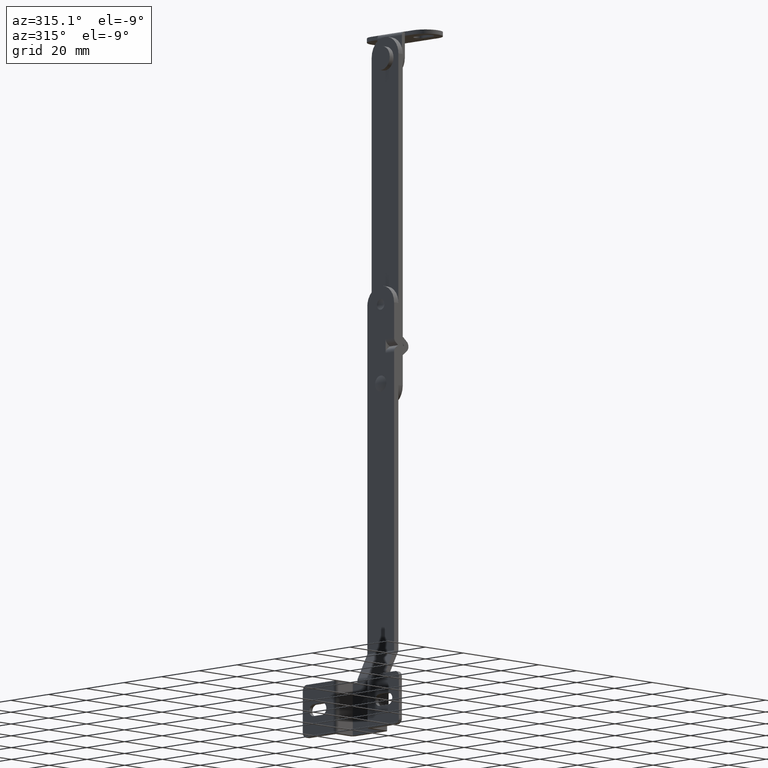
[diagram: clean part render]
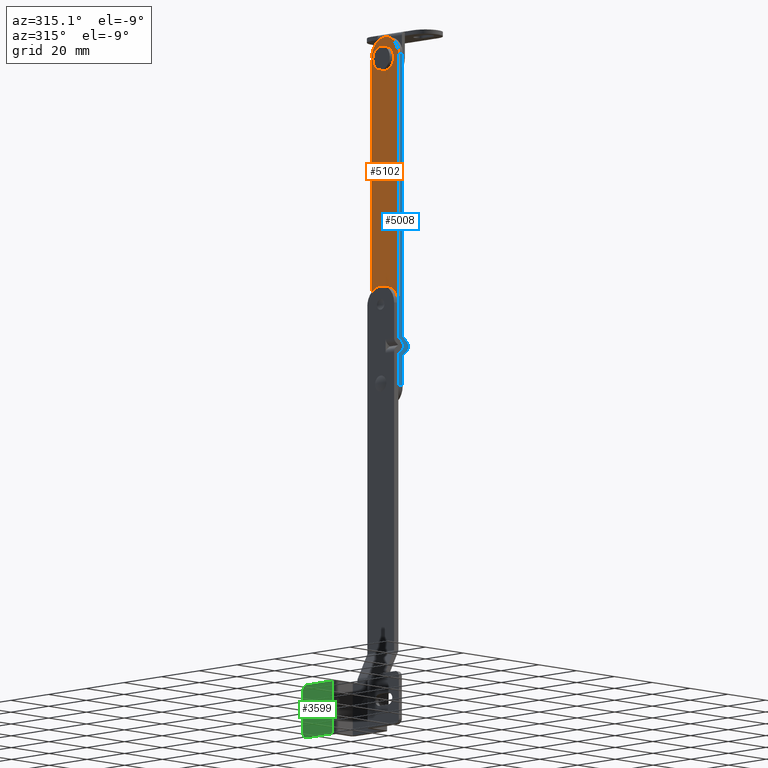
[diagram: same view with three faces highlighted in distinct colors, each labeled with its STEP entity id]
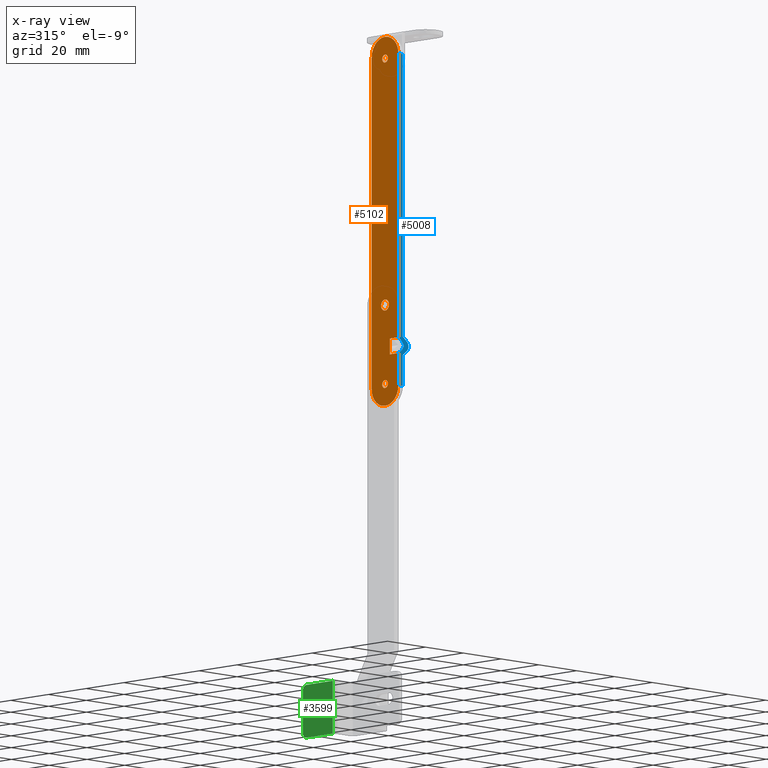
[diagram: x-ray of the same camera — body ghosted, the three highlighted faces saturated]
A machine part, auxiliary view with three faces highlighted in distinct colors.
The next image is the same camera in x-ray (body ghosted, the three faces saturated) — at least one of them is partly hidden behind the body in this view.
Their STEP definitions:

[orange] entity #5102 — the highlighted face is a freeform B-spline surface patch.
#3891=CARTESIAN_POINT('',(18.000005999999850,-1.504966212041846,31.464605460073400));
#3892=VERTEX_POINT('',#3891);
#3898=CARTESIAN_POINT('',(18.000005999999850,2.353318E-011,32.099999999999987));
#3899=VERTEX_POINT('',#3898);
#3900=CARTESIAN_POINT('',(18.000005999999850,2.353318E-011,32.099999999999987));
#3901=CARTESIAN_POINT('',(18.000005999999839,-0.297172532813742,32.100413468206327));
#3902=CARTESIAN_POINT('',(18.000005999999861,-0.856086520250351,31.979152703507591));
#3903=CARTESIAN_POINT('',(18.000005999999871,-1.322246616970956,31.652674539093280));
#3904=CARTESIAN_POINT('',(18.000005999999850,-1.504966212041846,31.464605460073400));
#3905=B_SPLINE_CURVE_WITH_KNOTS('',3,(#3900,#3901,#3902,#3903,#3904),.UNSPECIFIED.,.F.,.U.,(4,1,4),(0.000000161100297,0.891350011063941,1.677919263328558),.UNSPECIFIED.);
#3906=EDGE_CURVE('',#3899,#3892,#3905,.T.);
#3908=CARTESIAN_POINT('',(18.000005999999850,2.100000000011224,30.000007190142139));
#3909=VERTEX_POINT('',#3908);
#3910=CARTESIAN_POINT('',(18.000005999999850,2.100000000011224,30.000007190142139));
#3911=CARTESIAN_POINT('',(18.000005999999811,2.100401341967309,30.292166228100371));
#3912=CARTESIAN_POINT('',(18.000005999999939,2.012530415936131,30.704159471263338));
#3913=CARTESIAN_POINT('',(18.000005999999772,1.713138740352597,31.248002677381219));
#3914=CARTESIAN_POINT('',(18.000005999999960,1.316744935064823,31.685733563740659));
#3915=CARTESIAN_POINT('',(18.000005999999839,0.704396946099515,32.022629308128671));
#3916=CARTESIAN_POINT('',(18.000005999999878,0.223348172160021,32.100091444917219));
#3917=CARTESIAN_POINT('',(18.000005999999850,2.353318E-011,32.099999999999987));
#3918=B_SPLINE_CURVE_WITH_KNOTS('',3,(#3910,#3911,#3912,#3913,#3914,#3915,#3916,#3917),.UNSPECIFIED.,.F.,.U.,(4,1,1,1,1,4),(0.000000669547682,0.876232426485192,1.237077105182174,1.855504484027237,2.628699516542808,3.298751010646302),.UNSPECIFIED.);
#3919=EDGE_CURVE('',#3909,#3899,#3918,.T.);
#3921=CARTESIAN_POINT('',(18.000005999999850,2.353318E-011,27.899999999999999));
#3922=VERTEX_POINT('',#3921);
#3923=CARTESIAN_POINT('',(18.000005999999850,2.353318E-011,27.899999999999999));
#3924=CARTESIAN_POINT('',(18.000005999999878,0.360980440037213,27.899208218690902));
#3925=CARTESIAN_POINT('',(18.000005999999861,0.927011595196687,28.049731312821091));
#3926=CARTESIAN_POINT('',(18.000005999999811,1.474529900883017,28.477497435432269));
#3927=CARTESIAN_POINT('',(18.000005999999900,1.797811981718269,28.881350219763771));
#3928=CARTESIAN_POINT('',(18.000005999999910,2.033589203726059,29.364375680627610));
#3929=CARTESIAN_POINT('',(18.000005999999971,2.100124947958748,29.776646203857279));
#3930=CARTESIAN_POINT('',(18.000005999999850,2.100000000011224,30.000007190142139));
#3931=B_SPLINE_CURVE_WITH_KNOTS('',3,(#3923,#3924,#3925,#3926,#3927,#3928,#3929,#3930),.UNSPECIFIED.,.F.,.U.,(4,1,1,1,1,4),(0.000000659755424,1.082423134495415,1.700823224128252,2.061679648452581,2.628705970534092,3.298759115814546),.UNSPECIFIED.);
#3932=EDGE_CURVE('',#3922,#3909,#3931,.T.);
#3934=CARTESIAN_POINT('',(18.000005999999850,-1.548283788686297,28.581259420988779));
#3935=VERTEX_POINT('',#3934);
#3936=CARTESIAN_POINT('',(18.000005999999850,-1.548283788686297,28.581259420988779));
#3937=CARTESIAN_POINT('',(18.000005999999821,-1.303817160621517,28.312990594797551));
#3938=CARTESIAN_POINT('',(18.000005999999900,-0.797959896839803,27.990931273943819));
#3939=CARTESIAN_POINT('',(18.000005999999821,-0.217623969289623,27.899913682911869));
#3940=CARTESIAN_POINT('',(18.000005999999850,2.353318E-011,27.899999999999999));
#3941=B_SPLINE_CURVE_WITH_KNOTS('',3,(#3936,#3937,#3938,#3939,#3940),.UNSPECIFIED.,.F.,.U.,(4,1,4),(0.000000193664474,1.088114173913510,1.741015436768698),.UNSPECIFIED.);
#3942=EDGE_CURVE('',#3935,#3922,#3941,.T.);
#4021=CARTESIAN_POINT('',(18.000005999999850,-2.099999999964158,29.999992809857861));
#4022=VERTEX_POINT('',#4021);
#4023=CARTESIAN_POINT('',(18.000005999999850,-2.099999999964158,29.999992809857861));
#4024=CARTESIAN_POINT('',(18.000005999999921,-2.100401119125408,29.707843365561729));
#4025=CARTESIAN_POINT('',(18.000005999999729,-1.989744865538777,29.189020635594790));
#4026=CARTESIAN_POINT('',(18.000005999999921,-1.701865079064785,28.748654214679600));
#4027=CARTESIAN_POINT('',(18.000005999999850,-1.548283788686297,28.581259420988779));
#4028=B_SPLINE_CURVE_WITH_KNOTS('',3,(#4023,#4024,#4025,#4026,#4027),.UNSPECIFIED.,.F.,.U.,(4,1,4),(0.000000134614313,0.876283968948805,1.557839109256584),.UNSPECIFIED.);
#4029=EDGE_CURVE('',#4022,#3935,#4028,.T.);
#4031=CARTESIAN_POINT('',(18.000005999999850,-1.504966212041846,31.464605460073400));
#4032=CARTESIAN_POINT('',(18.000005999999839,-1.646309316688730,31.319450948581029));
#4033=CARTESIAN_POINT('',(18.000005999999871,-1.966668331505959,30.877320853909239));
#4034=CARTESIAN_POINT('',(18.000005999999839,-2.100746622087415,30.337826910873151));
#4035=CARTESIAN_POINT('',(18.000005999999850,-2.099999999964158,29.999992809857861));
#4036=B_SPLINE_CURVE_WITH_KNOTS('',3,(#4031,#4032,#4033,#4034,#4035),.UNSPECIFIED.,.F.,.U.,(4,1,4),(0.000000135716898,0.607832228863744,1.620841652716792),.UNSPECIFIED.);
#4037=EDGE_CURVE('',#3892,#4022,#4036,.T.);
#4114=CARTESIAN_POINT('',(18.000005999999850,1.088061622532548,124.532531757016200));
#4115=VERTEX_POINT('',#4114);
#4121=CARTESIAN_POINT('',(18.000005999999850,1.500000000000196,123.499999898093290));
#4122=VERTEX_POINT('',#4121);
#4123=CARTESIAN_POINT('',(18.000005999999850,1.500000000000196,123.499999898093290));
#4124=CARTESIAN_POINT('',(18.000005999999861,1.500094373910349,123.666090641040100));
#4125=CARTESIAN_POINT('',(18.000005999999821,1.436299482553834,124.045644888099600));
#4126=CARTESIAN_POINT('',(18.000005999999871,1.235304094366208,124.377817498110800));
#4127=CARTESIAN_POINT('',(18.000005999999850,1.088061622532548,124.532531757016200));
#4128=B_SPLINE_CURVE_WITH_KNOTS('',3,(#4123,#4124,#4125,#4126,#4127),.UNSPECIFIED.,.F.,.U.,(4,1,4),(0.000000215309600,0.498302147729972,1.138934045765472),.UNSPECIFIED.);
#4129=EDGE_CURVE('',#4122,#4115,#4128,.T.);
#4131=CARTESIAN_POINT('',(18.000005999999850,1.989520E-013,122.0));
#4132=VERTEX_POINT('',#4131);
#4133=CARTESIAN_POINT('',(18.000005999999850,1.989520E-013,122.0));
#4134=CARTESIAN_POINT('',(18.000005999999871,0.196374532189705,121.999806401937600));
#4135=CARTESIAN_POINT('',(18.000005999999850,0.588955400089572,122.078181439890000));
#4136=CARTESIAN_POINT('',(18.000005999999850,1.046616667949967,122.383904967156790));
#4137=CARTESIAN_POINT('',(18.000005999999861,1.401348529731233,122.862338073790300));
#4138=CARTESIAN_POINT('',(18.000005999999850,1.500501754522636,123.254428608522600));
#4139=CARTESIAN_POINT('',(18.000005999999850,1.500000000000196,123.499999898093290));
#4140=B_SPLINE_CURVE_WITH_KNOTS('',3,(#4133,#4134,#4135,#4136,#4137,#4138,#4139),.UNSPECIFIED.,.F.,.U.,(4,1,1,1,4),(0.000000459809881,0.589113369120328,1.178215900985511,1.620021289901941,2.356430767539218),.UNSPECIFIED.);
#4141=EDGE_CURVE('',#4132,#4122,#4140,.T.);
#4143=CARTESIAN_POINT('',(18.000005999999850,-1.499999999999798,123.500000101906710));
#4144=VERTEX_POINT('',#4143);
#4145=CARTESIAN_POINT('',(18.000005999999850,-1.499999999999798,123.500000101906710));
#4146=CARTESIAN_POINT('',(18.000005999999861,-1.500197131953345,123.303619964216690));
#4147=CARTESIAN_POINT('',(18.000005999999861,-1.421811866643334,122.911054073509310));
#4148=CARTESIAN_POINT('',(18.000005999999861,-1.116108213253855,122.453366895425300));
#4149=CARTESIAN_POINT('',(18.000005999999878,-0.637644643968191,122.098672159158200));
#4150=CARTESIAN_POINT('',(18.000005999999821,-0.245579947262801,121.999488274877710));
#4151=CARTESIAN_POINT('',(18.000005999999850,1.989520E-013,122.0));
#4152=B_SPLINE_CURVE_WITH_KNOTS('',3,(#4145,#4146,#4147,#4148,#4149,#4150,#4151),.UNSPECIFIED.,.F.,.U.,(4,1,1,1,4),(0.000000459267700,0.589113397398850,1.178215958646211,1.620021368977781,2.356430882423099),.UNSPECIFIED.);
#4153=EDGE_CURVE('',#4144,#4132,#4152,.T.);
#4155=CARTESIAN_POINT('',(18.000005999999850,-0.968612601166056,124.645333883298090));
#4156=VERTEX_POINT('',#4155);
#4157=CARTESIAN_POINT('',(18.000005999999850,-0.968612601166056,124.645333883298090));
#4158=CARTESIAN_POINT('',(18.000005999999861,-1.113856927582145,124.522729050563900));
#4159=CARTESIAN_POINT('',(18.000005999999900,-1.391287532771702,124.178256000644400));
#4160=CARTESIAN_POINT('',(18.000005999999829,-1.500528915928544,123.744470464866590));
#4161=CARTESIAN_POINT('',(18.000005999999850,-1.499999999999798,123.500000101906710));
#4162=B_SPLINE_CURVE_WITH_KNOTS('',3,(#4157,#4158,#4159,#4160,#4161),.UNSPECIFIED.,.F.,.U.,(4,1,4),(0.000000213399076,0.570222299864618,1.303362865730294),.UNSPECIFIED.);
#4163=EDGE_CURVE('',#4156,#4144,#4162,.T.);
#4198=CARTESIAN_POINT('',(18.000005999999850,1.989520E-013,125.0));
#4199=VERTEX_POINT('',#4198);
#4200=CARTESIAN_POINT('',(18.000005999999850,1.989520E-013,125.0));
#4201=CARTESIAN_POINT('',(18.000005999999850,-0.153573943671783,125.000065105575300));
#4202=CARTESIAN_POINT('',(18.000005999999889,-0.504523594658172,124.945632617794800));
#4203=CARTESIAN_POINT('',(18.000005999999829,-0.817982338751742,124.773012932810000));
#4204=CARTESIAN_POINT('',(18.000005999999850,-0.968612601166056,124.645333883298090));
#4205=B_SPLINE_CURVE_WITH_KNOTS('',3,(#4200,#4201,#4202,#4203,#4204),.UNSPECIFIED.,.F.,.U.,(4,1,4),(0.000000145798232,0.460735339230447,1.053075834784423),.UNSPECIFIED.);
#4206=EDGE_CURVE('',#4199,#4156,#4205,.T.);
#4208=CARTESIAN_POINT('',(18.000005999999850,1.088061622532548,124.532531757016200));
#4209=CARTESIAN_POINT('',(18.000005999999878,0.965957782783881,124.661418673217600));
#4210=CARTESIAN_POINT('',(18.000005999999800,0.633672929435514,124.905403570032800));
#4211=CARTESIAN_POINT('',(18.000005999999878,0.228349634128027,125.000411552657100));
#4212=CARTESIAN_POINT('',(18.000005999999850,1.989520E-013,125.0));
#4213=B_SPLINE_CURVE_WITH_KNOTS('',3,(#4208,#4209,#4210,#4211,#4212),.UNSPECIFIED.,.F.,.U.,(4,1,4),(0.000000151179073,0.532655956815469,1.217497629202838),.UNSPECIFIED.);
#4214=EDGE_CURVE('',#4115,#4199,#4213,.T.);
#4300=CARTESIAN_POINT('',(18.000005999999850,1.088061622532351,1.032531757016201));
#4301=VERTEX_POINT('',#4300);
#4307=CARTESIAN_POINT('',(18.000005999999850,1.499999999999997,-0.000000101906711));
#4308=VERTEX_POINT('',#4307);
#4309=CARTESIAN_POINT('',(18.000005999999850,1.499999999999997,-0.000000101906711));
#4310=CARTESIAN_POINT('',(18.000005999999871,1.500307129996414,0.213583071912541));
#4311=CARTESIAN_POINT('',(18.000005999999839,1.417453419207446,0.592880995900390));
#4312=CARTESIAN_POINT('',(18.000005999999871,1.202459026307127,0.912120892701639));
#4313=CARTESIAN_POINT('',(18.000005999999850,1.088061622532351,1.032531757016201));
#4314=B_SPLINE_CURVE_WITH_KNOTS('',3,(#4309,#4310,#4311,#4312,#4313),.UNSPECIFIED.,.F.,.U.,(4,1,4),(0.000000215310021,0.640632113347554,1.138934045765467),.UNSPECIFIED.);
#4315=EDGE_CURVE('',#4308,#4301,#4314,.T.);
#4317=CARTESIAN_POINT('',(18.000005999999850,0.0,-1.500000000000000));
#4318=VERTEX_POINT('',#4317);
#4319=CARTESIAN_POINT('',(18.000005999999850,0.0,-1.500000000000000));
#4320=CARTESIAN_POINT('',(18.000005999999861,0.196376588844617,-1.500198869482367));
#4321=CARTESIAN_POINT('',(18.000005999999861,0.588929825499899,-1.421784717390424));
#4322=CARTESIAN_POINT('',(18.000005999999850,1.088374743961445,-1.088400118192788));
#4323=CARTESIAN_POINT('',(18.000005999999850,1.421792717255046,-0.588895725307404));
#4324=CARTESIAN_POINT('',(18.000005999999861,1.500198714386067,-0.196383197151813));
#4325=CARTESIAN_POINT('',(18.000005999999850,1.499999999999997,-0.000000101906711));
#4326=B_SPLINE_CURVE_WITH_KNOTS('',3,(#4319,#4320,#4321,#4322,#4323,#4324,#4325),.UNSPECIFIED.,.F.,.U.,(4,1,1,1,4),(0.000000459807827,0.589113369118813,1.178215900984567,1.767323334941643,2.356430767539226),.UNSPECIFIED.);
#4327=EDGE_CURVE('',#4318,#4308,#4326,.T.);
#4329=CARTESIAN_POINT('',(18.000005999999850,-1.499999999999996,0.000000101906706));
#4330=VERTEX_POINT('',#4329);
#4331=CARTESIAN_POINT('',(18.000005999999850,-1.499999999999996,0.000000101906706));
#4332=CARTESIAN_POINT('',(18.000005999999861,-1.500227444283490,-0.196394948544765));
#4333=CARTESIAN_POINT('',(18.000005999999850,-1.441280870387536,-0.490726147554906));
#4334=CARTESIAN_POINT('',(18.000005999999861,-1.232015401121952,-0.882242641139707));
#4335=CARTESIAN_POINT('',(18.000005999999861,-0.932195025719677,-1.213302192652900));
#4336=CARTESIAN_POINT('',(18.000005999999821,-0.490922037095062,-1.449151624591697));
#4337=CARTESIAN_POINT('',(18.000005999999910,-0.147241673740855,-1.500021779058160));
#4338=CARTESIAN_POINT('',(18.000005999999850,0.0,-1.500000000000000));
#4339=B_SPLINE_CURVE_WITH_KNOTS('',3,(#4331,#4332,#4333,#4334,#4335,#4336,#4337,#4338),.UNSPECIFIED.,.F.,.U.,(4,1,1,1,1,4),(0.000000459268588,0.589113397398972,0.883685197253353,1.325465789790729,1.914625473615346,2.356430882423040),.UNSPECIFIED.);
#4340=EDGE_CURVE('',#4330,#4318,#4339,.T.);
#4342=CARTESIAN_POINT('',(18.000005999999850,-0.968612601166250,1.145333883298108));
#4343=VERTEX_POINT('',#4342);
#4344=CARTESIAN_POINT('',(18.000005999999850,-0.968612601166250,1.145333883298108));
#4345=CARTESIAN_POINT('',(18.000005999999839,-1.155635138508192,0.987874018329319));
#4346=CARTESIAN_POINT('',(18.000005999999878,-1.416269476178296,0.624348445460491));
#4347=CARTESIAN_POINT('',(18.000005999999850,-1.500194198350975,0.190066317444341));
#4348=CARTESIAN_POINT('',(18.000005999999850,-1.499999999999996,0.000000101906706));
#4349=B_SPLINE_CURVE_WITH_KNOTS('',3,(#4344,#4345,#4346,#4347,#4348),.UNSPECIFIED.,.F.,.U.,(4,1,4),(0.000000213400093,0.733140779273594,1.303362865730311),.UNSPECIFIED.);
#4350=EDGE_CURVE('',#4343,#4330,#4349,.T.);
#4385=CARTESIAN_POINT('',(18.000005999999850,0.0,1.500000000000000));
#4386=VERTEX_POINT('',#4385);
#4387=CARTESIAN_POINT('',(18.000005999999850,0.0,1.500000000000000));
#4388=CARTESIAN_POINT('',(18.000005999999861,-0.197471182540886,1.500224964659410));
#4389=CARTESIAN_POINT('',(18.000005999999871,-0.548256974916136,1.429610475618921));
#4390=CARTESIAN_POINT('',(18.000005999999861,-0.851399797329518,1.244552497806669));
#4391=CARTESIAN_POINT('',(18.000005999999850,-0.968612601166250,1.145333883298108));
#4392=B_SPLINE_CURVE_WITH_KNOTS('',3,(#4387,#4388,#4389,#4390,#4391),.UNSPECIFIED.,.F.,.U.,(4,1,4),(0.000000145798032,0.592340641349427,1.053075834784420),.UNSPECIFIED.);
#4393=EDGE_CURVE('',#4386,#4343,#4392,.T.);
#4395=CARTESIAN_POINT('',(18.000005999999850,1.088061622532351,1.032531757016201));
#4396=CARTESIAN_POINT('',(18.000005999999921,0.931176031849825,1.198450472488889));
#4397=CARTESIAN_POINT('',(18.000005999999772,0.583249154974564,1.427070887466931));
#4398=CARTESIAN_POINT('',(18.000005999999900,0.177546264934306,1.500145961175159));
#4399=CARTESIAN_POINT('',(18.000005999999850,0.0,1.500000000000000));
#4400=B_SPLINE_CURVE_WITH_KNOTS('',3,(#4395,#4396,#4397,#4398,#4399),.UNSPECIFIED.,.F.,.U.,(4,1,4),(0.000000151178589,0.684841823559500,1.217497629202830),.UNSPECIFIED.);
#4401=EDGE_CURVE('',#4301,#4386,#4400,.T.);
#4507=CARTESIAN_POINT('',(18.000005999999900,-7.099999999999770,11.000013213438301));
#4508=VERTEX_POINT('',#4507);
#4521=CARTESIAN_POINT('',(18.000005999999900,-2.599999999999910,11.000013213438301));
#4522=VERTEX_POINT('',#4521);
#4528=CARTESIAN_POINT('',(18.000005999999900,-2.599999999999910,11.000013213438301));
#4529=CARTESIAN_POINT('',(18.000005999999900,-7.099999999999770,11.000013213438301));
#4530=QUASI_UNIFORM_CURVE('',1,(#4528,#4529),.UNSPECIFIED.,.F.,.U.);
#4531=EDGE_CURVE('',#4522,#4508,#4530,.T.);
#4693=CARTESIAN_POINT('',(18.000005999999900,-7.099999999999770,16.999986786501800));
#4694=VERTEX_POINT('',#4693);
#4700=CARTESIAN_POINT('',(18.000006000000049,-2.599999999999910,16.999986786501651));
#4701=VERTEX_POINT('',#4700);
#4702=CARTESIAN_POINT('',(18.000006000000049,-2.599999999999910,16.999986786501651));
#4703=CARTESIAN_POINT('',(18.000005999999900,-7.099999999999770,16.999986786501800));
#4704=QUASI_UNIFORM_CURVE('',1,(#4702,#4703),.UNSPECIFIED.,.F.,.U.);
#4705=EDGE_CURVE('',#4701,#4694,#4704,.T.);
#4815=CARTESIAN_POINT('',(18.000005999999850,-7.100000000000111,-1.150000000000020));
#4816=VERTEX_POINT('',#4815);
#4822=CARTESIAN_POINT('',(18.000005999999850,-0.000000035110812,-8.250000000000036));
#4823=VERTEX_POINT('',#4822);
#4824=CARTESIAN_POINT('',(18.000005999999850,-7.100000000000111,-1.150000000000020));
#4825=CARTESIAN_POINT('',(18.000005999999829,-7.100812175491673,-2.021448822282769));
#4826=CARTESIAN_POINT('',(18.000005999999921,-6.872564088997872,-3.240682494557528));
#4827=CARTESIAN_POINT('',(18.000005999999800,-6.150109795306856,-4.767505559484478));
#4828=CARTESIAN_POINT('',(18.000005999999910,-5.243102028768911,-6.056378166306366));
#4829=CARTESIAN_POINT('',(18.000005999999729,-3.937646799514587,-7.154525751636647));
#4830=CARTESIAN_POINT('',(18.000006000000131,-2.090752477145424,-8.027868550523383));
#4831=CARTESIAN_POINT('',(18.000005999999448,-0.813315201979239,-8.250629339774520));
#4832=CARTESIAN_POINT('',(18.000005999999850,-0.000000035110812,-8.250000000000036));
#4833=B_SPLINE_CURVE_WITH_KNOTS('',3,(#4824,#4825,#4826,#4827,#4828,#4829,#4830,#4831,#4832),.UNSPECIFIED.,.F.,.U.,(4,1,1,1,1,1,4),(0.000000104937286,2.613962001900474,3.659585621935396,5.053684775021117,7.319079450290418,8.713244082205566,11.152933764986710),.UNSPECIFIED.);
#4834=EDGE_CURVE('',#4816,#4823,#4833,.T.);
#4836=CARTESIAN_POINT('',(18.000005999999850,7.100000000000140,-1.149999999999854));
#4837=VERTEX_POINT('',#4836);
#4838=CARTESIAN_POINT('',(18.000005999999850,-0.000000035110812,-8.250000000000036));
#4839=CARTESIAN_POINT('',(18.000005999999871,0.755178160061666,-8.250394108193813));
#4840=CARTESIAN_POINT('',(18.000005999999811,1.974714118005257,-8.053505325126988));
#4841=CARTESIAN_POINT('',(18.000005999999921,3.522095397210214,-7.367383861400406));
#4842=CARTESIAN_POINT('',(18.000005999999811,4.906318737882544,-6.393038193591325));
#4843=CARTESIAN_POINT('',(18.000005999999878,5.928823633117491,-5.177733825191954));
#4844=CARTESIAN_POINT('',(18.000005999999821,6.845334677882875,-3.356616017973017));
#4845=CARTESIAN_POINT('',(18.000005999999910,7.101063423435044,-2.079624606634792));
#4846=CARTESIAN_POINT('',(18.000005999999850,7.100000000000140,-1.149999999999854));
#4847=B_SPLINE_CURVE_WITH_KNOTS('',3,(#4838,#4839,#4840,#4841,#4842,#4843,#4844,#4845,#4846),.UNSPECIFIED.,.F.,.U.,(4,1,1,1,1,1,4),(0.000000104890967,2.265418676070031,3.659585634879675,5.053684792876231,7.319079476249268,8.364700377287139,11.152933804565841),.UNSPECIFIED.);
#4848=EDGE_CURVE('',#4823,#4837,#4847,.T.);
#4876=CARTESIAN_POINT('',(18.000005999999850,7.100000000000210,124.650000000000010));
#4877=VERTEX_POINT('',#4876);
#4878=CARTESIAN_POINT('',(18.000005999999850,-0.000004087301113,131.749999999998810));
#4879=VERTEX_POINT('',#4878);
#4880=CARTESIAN_POINT('',(18.000005999999850,7.100000000000210,124.650000000000010));
#4881=CARTESIAN_POINT('',(18.000005999999850,7.100748200431393,125.521429021711700));
#4882=CARTESIAN_POINT('',(18.000005999999861,6.850858805584575,126.856823934835900));
#4883=CARTESIAN_POINT('',(18.000005999999850,6.010879888927872,128.525128565650700));
#4884=CARTESIAN_POINT('',(18.000005999999861,5.024945571231718,129.757086151615910));
#4885=CARTESIAN_POINT('',(18.000005999999878,3.594782698641044,130.873554060637590));
#4886=CARTESIAN_POINT('',(18.000005999999821,1.858767913448657,131.592444140168600));
#4887=CARTESIAN_POINT('',(18.000005999999878,0.580857769505397,131.750129348863110));
#4888=CARTESIAN_POINT('',(18.000005999999850,-0.000004087301113,131.749999999998810));
#4889=B_SPLINE_CURVE_WITH_KNOTS('',3,(#4880,#4881,#4882,#4883,#4884,#4885,#4886,#4887,#4888),.UNSPECIFIED.,.F.,.U.,(4,1,1,1,1,1,4),(0.000000102113356,2.613962544137795,4.008118674491572,5.576468095322981,7.319080974182322,9.410323204991272,11.152936088503671),.UNSPECIFIED.);
#4890=EDGE_CURVE('',#4877,#4879,#4889,.T.);
#4892=CARTESIAN_POINT('',(18.000005999999850,-7.099999999999779,124.650000000000010));
#4893=VERTEX_POINT('',#4892);
#4894=CARTESIAN_POINT('',(18.000005999999850,-0.000004087301113,131.749999999998810));
#4895=CARTESIAN_POINT('',(18.000005999999850,-0.755200481800251,131.750476749286610));
#4896=CARTESIAN_POINT('',(18.000005999999839,-1.974679930636971,131.553402230688700));
#4897=CARTESIAN_POINT('',(18.000005999999900,-3.789119498363788,130.749381689388910));
#4898=CARTESIAN_POINT('',(18.000005999999789,-5.121076544867848,129.683542110259400));
#4899=CARTESIAN_POINT('',(18.000005999999932,-6.129079228508950,128.323608453858410));
#4900=CARTESIAN_POINT('',(18.000005999999800,-6.877884182235287,126.740785351282500));
#4901=CARTESIAN_POINT('',(18.000005999999800,-7.100632994226824,125.463304112498410));
#4902=CARTESIAN_POINT('',(18.000005999999850,-7.099999999999779,124.650000000000010));
#4903=B_SPLINE_CURVE_WITH_KNOTS('',3,(#4894,#4895,#4896,#4897,#4898,#4899,#4900,#4901,#4902),.UNSPECIFIED.,.F.,.U.,(4,1,1,1,1,1,4),(0.000000107720883,2.265418206503430,3.659584875053608,5.924986447081957,7.319077952356188,8.713242297294107,11.152931481047530),.UNSPECIFIED.);
#4904=EDGE_CURVE('',#4879,#4893,#4903,.T.);
#4956=CARTESIAN_POINT('',(18.000005999999850,7.100000000000140,-1.149999999999854));
#4957=CARTESIAN_POINT('',(18.000005999999850,7.100000000000210,124.650000000000010));
#4958=QUASI_UNIFORM_CURVE('',1,(#4956,#4957),.UNSPECIFIED.,.F.,.U.);
#4959=EDGE_CURVE('',#4837,#4877,#4958,.T.);
#4975=CARTESIAN_POINT('',(18.000005999999850,-7.099999999999779,124.650000000000010));
#4976=CARTESIAN_POINT('',(18.000005999999900,-7.099999999999770,16.999986786501800));
#4977=QUASI_UNIFORM_CURVE('',1,(#4975,#4976),.UNSPECIFIED.,.F.,.U.);
#4978=EDGE_CURVE('',#4893,#4694,#4977,.T.);
#4986=CARTESIAN_POINT('',(18.000005999999900,-7.099999999999770,11.000013213438301));
#4987=CARTESIAN_POINT('',(18.000005999999850,-7.100000000000111,-1.150000000000020));
#4988=QUASI_UNIFORM_CURVE('',1,(#4986,#4987),.UNSPECIFIED.,.F.,.U.);
#4989=EDGE_CURVE('',#4508,#4816,#4988,.T.);
#5057=CARTESIAN_POINT('',(18.000005999999900,-7.809289972477772,138.742999728651600));
#5058=CARTESIAN_POINT('',(18.000005999999910,7.809290353351551,138.742999728651600));
#5059=CARTESIAN_POINT('',(18.000005999999910,-7.809289972477772,-15.243003483745451));
#5060=CARTESIAN_POINT('',(18.000005999999910,7.809290353351551,-15.243003483745451));
#5061=B_SPLINE_SURFACE_WITH_KNOTS('',1,1,((#5057,#5059),(#5058,#5060)),.UNSPECIFIED.,.F.,.F.,.U.,(2,2),(2,2),(0.0,15.618580325829321),(0.0,153.986003212397090),.UNSPECIFIED.);
#5062=ORIENTED_EDGE('',*,*,#4989,.F.);
#5063=ORIENTED_EDGE('',*,*,#4531,.F.);
#5064=CARTESIAN_POINT('',(18.000006000000049,-2.599999999999910,16.999986786501651));
#5065=CARTESIAN_POINT('',(18.000005999999900,-2.599999999999910,11.000013213438301));
#5066=QUASI_UNIFORM_CURVE('',1,(#5064,#5065),.UNSPECIFIED.,.F.,.U.);
#5067=EDGE_CURVE('',#4701,#4522,#5066,.T.);
#5068=ORIENTED_EDGE('',*,*,#5067,.F.);
#5069=ORIENTED_EDGE('',*,*,#4705,.T.);
#5070=ORIENTED_EDGE('',*,*,#4978,.F.);
#5071=ORIENTED_EDGE('',*,*,#4904,.F.);
#5072=ORIENTED_EDGE('',*,*,#4890,.F.);
#5073=ORIENTED_EDGE('',*,*,#4959,.F.);
#5074=ORIENTED_EDGE('',*,*,#4848,.F.);
#5075=ORIENTED_EDGE('',*,*,#4834,.F.);
#5076=EDGE_LOOP('',(#5062,#5063,#5068,#5069,#5070,#5071,#5072,#5073,#5074,#5075));
#5077=FACE_OUTER_BOUND('',#5076,.T.);
#5078=ORIENTED_EDGE('',*,*,#4153,.T.);
#5079=ORIENTED_EDGE('',*,*,#4141,.T.);
#5080=ORIENTED_EDGE('',*,*,#4129,.T.);
#5081=ORIENTED_EDGE('',*,*,#4214,.T.);
#5082=ORIENTED_EDGE('',*,*,#4206,.T.);
#5083=ORIENTED_EDGE('',*,*,#4163,.T.);
#5084=EDGE_LOOP('',(#5078,#5079,#5080,#5081,#5082,#5083));
#5085=FACE_BOUND('',#5084,.T.);
#5086=ORIENTED_EDGE('',*,*,#4340,.T.);
#5087=ORIENTED_EDGE('',*,*,#4327,.T.);
#5088=ORIENTED_EDGE('',*,*,#4315,.T.);
#5089=ORIENTED_EDGE('',*,*,#4401,.T.);
#5090=ORIENTED_EDGE('',*,*,#4393,.T.);
#5091=ORIENTED_EDGE('',*,*,#4350,.T.);
#5092=EDGE_LOOP('',(#5086,#5087,#5088,#5089,#5090,#5091));
#5093=FACE_BOUND('',#5092,.T.);
#5094=ORIENTED_EDGE('',*,*,#3932,.T.);
#5095=ORIENTED_EDGE('',*,*,#3919,.T.);
#5096=ORIENTED_EDGE('',*,*,#3906,.T.);
#5097=ORIENTED_EDGE('',*,*,#4037,.T.);
#5098=ORIENTED_EDGE('',*,*,#4029,.T.);
#5099=ORIENTED_EDGE('',*,*,#3942,.T.);
#5100=EDGE_LOOP('',(#5094,#5095,#5096,#5097,#5098,#5099));
#5101=FACE_BOUND('',#5100,.T.);
#5102=ADVANCED_FACE('',(#5077,#5085,#5093,#5101),#5061,.T.);

[blue] entity #5008 — the highlighted face is a freeform B-spline surface patch.
#4429=CARTESIAN_POINT('',(22.433993019084749,-7.099999999999770,12.201770424763600));
#4430=VERTEX_POINT('',#4429);
#4431=CARTESIAN_POINT('',(22.433993019104651,-7.099999999999770,15.798229575249350));
#4432=VERTEX_POINT('',#4431);
#4433=CARTESIAN_POINT('',(22.433993019084749,-7.099999999999770,12.201770424763600));
#4434=CARTESIAN_POINT('',(22.737288859639619,-7.099999999999752,12.442594004814939));
#4435=CARTESIAN_POINT('',(23.123159308090209,-7.099999999999792,12.957580854712230));
#4436=CARTESIAN_POINT('',(23.318152324285681,-7.099999999999754,13.761329311641260));
#4437=CARTESIAN_POINT('',(23.289933058195611,-7.099999999999764,14.432725632767390));
#4438=CARTESIAN_POINT('',(23.048544863425420,-7.099999999999836,15.155144261395099));
#4439=CARTESIAN_POINT('',(22.686501267030700,-7.099999999999714,15.597392888137669));
#4440=CARTESIAN_POINT('',(22.433993019104651,-7.099999999999770,15.798229575249350));
#4441=B_SPLINE_CURVE_WITH_KNOTS('',3,(#4433,#4434,#4435,#4436,#4437,#4438,#4439,#4440),.UNSPECIFIED.,.F.,.U.,(4,1,1,1,1,4),(0.000000841797339,1.161341697168068,1.871049027132661,2.451675481668204,3.161379097449814,4.129140733869971),.UNSPECIFIED.);
#4442=EDGE_CURVE('',#4430,#4432,#4441,.T.);
#4477=CARTESIAN_POINT('',(20.300006499990570,-7.100000000000001,10.500000000000000));
#4478=VERTEX_POINT('',#4477);
#4479=CARTESIAN_POINT('',(20.300006499990570,-7.100000000000001,10.500000000000000));
#4480=CARTESIAN_POINT('',(22.433993019084749,-7.099999999999770,12.201770424763600));
#4481=QUASI_UNIFORM_CURVE('',1,(#4479,#4480),.UNSPECIFIED.,.F.,.U.);
#4482=EDGE_CURVE('',#4478,#4430,#4481,.T.);
#4505=CARTESIAN_POINT('',(19.561026998289950,-7.099999999999770,12.145930733421199));
#4506=VERTEX_POINT('',#4505);
#4507=CARTESIAN_POINT('',(18.000005999999900,-7.099999999999770,11.000013213438301));
#4508=VERTEX_POINT('',#4507);
#4509=CARTESIAN_POINT('',(19.561026998289950,-7.099999999999770,12.145930733421199));
#4510=CARTESIAN_POINT('',(18.000005999999900,-7.099999999999770,11.000013213438301));
#4511=QUASI_UNIFORM_CURVE('',1,(#4509,#4510),.UNSPECIFIED.,.F.,.U.);
#4512=EDGE_CURVE('',#4506,#4508,#4511,.T.);
#4550=CARTESIAN_POINT('',(20.089273714290751,-7.099999999999770,12.688283761670499));
#4551=VERTEX_POINT('',#4550);
#4552=CARTESIAN_POINT('',(19.561026998289950,-7.099999999999770,12.145930733421199));
#4553=CARTESIAN_POINT('',(19.765489669741299,-7.099999999999764,12.295872549419540));
#4554=CARTESIAN_POINT('',(19.944736953511491,-7.099999999999777,12.479992625813180));
#4555=CARTESIAN_POINT('',(20.089273714290751,-7.099999999999770,12.688283761670499));
#4556=B_SPLINE_CURVE_WITH_KNOTS('',3,(#4552,#4553,#4554,#4555),.UNSPECIFIED.,.F.,.U.,(4,4),(0.000000034690947,0.760608580973757),.UNSPECIFIED.);
#4557=EDGE_CURVE('',#4506,#4551,#4556,.T.);
#4582=CARTESIAN_POINT('',(20.999988000023301,-7.099999999999770,14.000000000014261));
#4583=VERTEX_POINT('',#4582);
#4584=CARTESIAN_POINT('',(20.999988000023301,-7.099999999999770,14.000000000014261));
#4585=CARTESIAN_POINT('',(20.089273714290751,-7.099999999999770,12.688283761670499));
#4586=QUASI_UNIFORM_CURVE('',1,(#4584,#4585),.UNSPECIFIED.,.F.,.U.);
#4587=EDGE_CURVE('',#4583,#4551,#4586,.T.);
#4617=CARTESIAN_POINT('',(20.089273714270899,-7.099999999999770,15.311716238301949));
#4618=VERTEX_POINT('',#4617);
#4619=CARTESIAN_POINT('',(20.089273714270899,-7.099999999999770,15.311716238301949));
#4620=CARTESIAN_POINT('',(20.999988000023301,-7.099999999999770,14.000000000014261));
#4621=QUASI_UNIFORM_CURVE('',1,(#4619,#4620),.UNSPECIFIED.,.F.,.U.);
#4622=EDGE_CURVE('',#4618,#4583,#4621,.T.);
#4661=CARTESIAN_POINT('',(19.561026998286650,-7.099999999999770,15.854069266524800));
#4662=VERTEX_POINT('',#4661);
#4663=CARTESIAN_POINT('',(20.089273714270899,-7.099999999999770,15.311716238301949));
#4664=CARTESIAN_POINT('',(19.944739993629859,-7.099999999999774,15.520004566745101));
#4665=CARTESIAN_POINT('',(19.765485235357389,-7.099999999999766,15.704132823360510));
#4666=CARTESIAN_POINT('',(19.561026998286650,-7.099999999999770,15.854069266524800));
#4667=B_SPLINE_CURVE_WITH_KNOTS('',3,(#4663,#4664,#4665,#4666),.UNSPECIFIED.,.F.,.U.,(4,4),(0.000000034690901,0.760608580942840),.UNSPECIFIED.);
#4668=EDGE_CURVE('',#4618,#4662,#4667,.T.);
#4693=CARTESIAN_POINT('',(18.000005999999900,-7.099999999999770,16.999986786501800));
#4694=VERTEX_POINT('',#4693);
#4695=CARTESIAN_POINT('',(18.000005999999900,-7.099999999999770,16.999986786501800));
#4696=CARTESIAN_POINT('',(19.561026998286650,-7.099999999999770,15.854069266524800));
#4697=QUASI_UNIFORM_CURVE('',1,(#4695,#4696),.UNSPECIFIED.,.F.,.U.);
#4698=EDGE_CURVE('',#4694,#4662,#4697,.T.);
#4721=CARTESIAN_POINT('',(20.300006500032829,-7.100000000000001,17.500000000000000));
#4722=VERTEX_POINT('',#4721);
#4723=CARTESIAN_POINT('',(22.433993019104651,-7.099999999999770,15.798229575249350));
#4724=CARTESIAN_POINT('',(20.300006500032829,-7.100000000000001,17.500000000000000));
#4725=QUASI_UNIFORM_CURVE('',1,(#4723,#4724),.UNSPECIFIED.,.F.,.U.);
#4726=EDGE_CURVE('',#4432,#4722,#4725,.T.);
#4801=CARTESIAN_POINT('',(20.300025000000051,-7.100000000000111,-1.150000000000020));
#4802=VERTEX_POINT('',#4801);
#4815=CARTESIAN_POINT('',(18.000005999999850,-7.100000000000111,-1.150000000000020));
#4816=VERTEX_POINT('',#4815);
#4817=CARTESIAN_POINT('',(18.000005999999850,-7.100000000000111,-1.150000000000020));
#4818=CARTESIAN_POINT('',(20.300025000000051,-7.100000000000111,-1.150000000000020));
#4819=QUASI_UNIFORM_CURVE('',1,(#4817,#4818),.UNSPECIFIED.,.F.,.U.);
#4820=EDGE_CURVE('',#4816,#4802,#4819,.T.);
#4892=CARTESIAN_POINT('',(18.000005999999850,-7.099999999999779,124.650000000000010));
#4893=VERTEX_POINT('',#4892);
#4906=CARTESIAN_POINT('',(20.300025000000051,-7.099999999999810,124.650000000000010));
#4907=VERTEX_POINT('',#4906);
#4908=CARTESIAN_POINT('',(20.300025000000051,-7.099999999999810,124.650000000000010));
#4909=CARTESIAN_POINT('',(18.000005999999850,-7.099999999999779,124.650000000000010));
#4910=QUASI_UNIFORM_CURVE('',1,(#4908,#4909),.UNSPECIFIED.,.F.,.U.);
#4911=EDGE_CURVE('',#4907,#4893,#4910,.T.);
#4970=CARTESIAN_POINT('',(17.735271440439110,-7.099999999999799,130.933712118015990));
#4971=CARTESIAN_POINT('',(17.735271440439110,-7.099999999999799,-7.433713242755631));
#4972=CARTESIAN_POINT('',(23.564725829185829,-7.099999999999799,130.933712118015990));
#4973=CARTESIAN_POINT('',(23.564725829185829,-7.099999999999799,-7.433713242755631));
#4974=B_SPLINE_SURFACE_WITH_KNOTS('',1,1,((#4970,#4972),(#4971,#4973)),.UNSPECIFIED.,.F.,.F.,.U.,(2,2),(2,2),(0.0,138.367425360771590),(0.0,5.829454388746711),.UNSPECIFIED.);
#4975=CARTESIAN_POINT('',(18.000005999999850,-7.099999999999779,124.650000000000010));
#4976=CARTESIAN_POINT('',(18.000005999999900,-7.099999999999770,16.999986786501800));
#4977=QUASI_UNIFORM_CURVE('',1,(#4975,#4976),.UNSPECIFIED.,.F.,.U.);
#4978=EDGE_CURVE('',#4893,#4694,#4977,.T.);
#4979=ORIENTED_EDGE('',*,*,#4978,.T.);
#4980=ORIENTED_EDGE('',*,*,#4698,.T.);
#4981=ORIENTED_EDGE('',*,*,#4668,.F.);
#4982=ORIENTED_EDGE('',*,*,#4622,.T.);
#4983=ORIENTED_EDGE('',*,*,#4587,.T.);
#4984=ORIENTED_EDGE('',*,*,#4557,.F.);
#4985=ORIENTED_EDGE('',*,*,#4512,.T.);
#4986=CARTESIAN_POINT('',(18.000005999999900,-7.099999999999770,11.000013213438301));
#4987=CARTESIAN_POINT('',(18.000005999999850,-7.100000000000111,-1.150000000000020));
#4988=QUASI_UNIFORM_CURVE('',1,(#4986,#4987),.UNSPECIFIED.,.F.,.U.);
#4989=EDGE_CURVE('',#4508,#4816,#4988,.T.);
#4990=ORIENTED_EDGE('',*,*,#4989,.T.);
#4991=ORIENTED_EDGE('',*,*,#4820,.T.);
#4992=CARTESIAN_POINT('',(20.300006499990570,-7.100000000000001,10.500000000000000));
#4993=CARTESIAN_POINT('',(20.300025000000051,-7.100000000000111,-1.150000000000020));
#4994=QUASI_UNIFORM_CURVE('',1,(#4992,#4993),.UNSPECIFIED.,.F.,.U.);
#4995=EDGE_CURVE('',#4478,#4802,#4994,.T.);
#4996=ORIENTED_EDGE('',*,*,#4995,.F.);
#4997=ORIENTED_EDGE('',*,*,#4482,.T.);
#4998=ORIENTED_EDGE('',*,*,#4442,.T.);
#4999=ORIENTED_EDGE('',*,*,#4726,.T.);
#5000=CARTESIAN_POINT('',(20.300025000000051,-7.099999999999810,124.650000000000010));
#5001=CARTESIAN_POINT('',(20.300006500032829,-7.100000000000001,17.500000000000000));
#5002=QUASI_UNIFORM_CURVE('',1,(#5000,#5001),.UNSPECIFIED.,.F.,.U.);
#5003=EDGE_CURVE('',#4907,#4722,#5002,.T.);
#5004=ORIENTED_EDGE('',*,*,#5003,.F.);
#5005=ORIENTED_EDGE('',*,*,#4911,.T.);
#5006=EDGE_LOOP('',(#4979,#4980,#4981,#4982,#4983,#4984,#4985,#4990,#4991,#4996,#4997,#4998,#4999,#5004,#5005));
#5007=FACE_OUTER_BOUND('',#5006,.T.);
#5008=ADVANCED_FACE('',(#5007),#4974,.T.);

[green] entity #3599 — the highlighted face is a freeform B-spline surface patch.
#2828=CARTESIAN_POINT('',(0.0,19.750000000000000,-121.250000000000000));
#2829=VERTEX_POINT('',#2828);
#2835=CARTESIAN_POINT('',(0.0,21.999999999988400,-123.499992776606210));
#2836=VERTEX_POINT('',#2835);
#2837=CARTESIAN_POINT('',(0.0,21.999999999988400,-123.499992776606210));
#2838=CARTESIAN_POINT('',(0.0,22.000010112251751,-123.297529035519010));
#2839=CARTESIAN_POINT('',(0.0,21.930236096137669,-122.781962409180100));
#2840=CARTESIAN_POINT('',(0.0,21.592518030324459,-122.130824567412300));
#2841=CARTESIAN_POINT('',(0.0,21.088539472713560,-121.663273106558610));
#2842=CARTESIAN_POINT('',(0.0,20.504496733197438,-121.341721828068600));
#2843=CARTESIAN_POINT('',(0.0,20.044585403062928,-121.249677669689600));
#2844=CARTESIAN_POINT('',(0.0,19.750000000000000,-121.250000000000000));
#2845=B_SPLINE_CURVE_WITH_KNOTS('',3,(#2837,#2838,#2839,#2840,#2841,#2842,#2843,#2844),.UNSPECIFIED.,.F.,.U.,(4,1,1,1,1,4),(0.000000634927547,0.607464559276524,1.546355748820540,2.153755817366355,2.650782462055572,3.534376353550579),.UNSPECIFIED.);
#2846=EDGE_CURVE('',#2836,#2829,#2845,.T.);
#2848=CARTESIAN_POINT('',(0.0,19.750000000000000,-125.750000000000000));
#2849=VERTEX_POINT('',#2848);
#2850=CARTESIAN_POINT('',(0.0,19.750000000000000,-125.750000000000000));
#2851=CARTESIAN_POINT('',(0.0,19.989300837525729,-125.750114782813990));
#2852=CARTESIAN_POINT('',(0.0,20.504728884954009,-125.667079522988500));
#2853=CARTESIAN_POINT('',(0.0,21.144382426305420,-125.315142894587000));
#2854=CARTESIAN_POINT('',(0.0,21.586730651539700,-124.838566168646390));
#2855=CARTESIAN_POINT('',(0.0,21.908320109319849,-124.254496841954310));
#2856=CARTESIAN_POINT('',(0.0,22.000272848361170,-123.794568523723400));
#2857=CARTESIAN_POINT('',(0.0,21.999999999988400,-123.499992776606210));
#2858=B_SPLINE_CURVE_WITH_KNOTS('',3,(#2850,#2851,#2852,#2853,#2854,#2855,#2856,#2857),.UNSPECIFIED.,.F.,.U.,(4,1,1,1,1,4),(0.000000625087338,0.717912673826369,1.546359307080085,2.153760755115881,2.650788564762306,3.534384496202162),.UNSPECIFIED.);
#2859=EDGE_CURVE('',#2849,#2836,#2858,.T.);
#2882=CARTESIAN_POINT('',(0.0,15.250000000000000,-125.750000000000000));
#2883=VERTEX_POINT('',#2882);
#2884=CARTESIAN_POINT('',(0.0,15.250000000000000,-125.750000000000000));
#2885=CARTESIAN_POINT('',(0.0,19.750000000000000,-125.750000000000000));
#2886=QUASI_UNIFORM_CURVE('',1,(#2884,#2885),.UNSPECIFIED.,.F.,.U.);
#2887=EDGE_CURVE('',#2883,#2849,#2886,.T.);
#2940=CARTESIAN_POINT('',(0.0,13.000000000011591,-123.500007223393790));
#2941=VERTEX_POINT('',#2940);
#2942=CARTESIAN_POINT('',(0.0,13.000000000011591,-123.500007223393790));
#2943=CARTESIAN_POINT('',(0.0,12.999023732354191,-123.886825284762490));
#2944=CARTESIAN_POINT('',(0.0,13.165501912504549,-124.511519784724200));
#2945=CARTESIAN_POINT('',(0.0,13.747987247299950,-125.239508984707900));
#2946=CARTESIAN_POINT('',(0.0,14.440058021686969,-125.654237516734200));
#2947=CARTESIAN_POINT('',(0.0,14.992291424327041,-125.750138215482290));
#2948=CARTESIAN_POINT('',(0.0,15.250000000000000,-125.750000000000000));
#2949=B_SPLINE_CURVE_WITH_KNOTS('',3,(#2942,#2943,#2944,#2945,#2946,#2947,#2948),.UNSPECIFIED.,.F.,.U.,(4,1,1,1,4),(0.000000634941577,1.159745251504051,1.877593165105490,2.761238464683919,3.534376353550361),.UNSPECIFIED.);
#2950=EDGE_CURVE('',#2941,#2883,#2949,.T.);
#2952=CARTESIAN_POINT('',(0.0,15.250000000000000,-121.250000000000000));
#2953=VERTEX_POINT('',#2952);
#2954=CARTESIAN_POINT('',(0.0,15.250000000000000,-121.250000000000000));
#2955=CARTESIAN_POINT('',(0.0,14.863275621361870,-121.249119081881700));
#2956=CARTESIAN_POINT('',(0.0,14.164702216760800,-121.434788759955890));
#2957=CARTESIAN_POINT('',(0.0,13.417716648191229,-122.095271669762790));
#2958=CARTESIAN_POINT('',(0.0,13.064911113810711,-122.818887233898590));
#2959=CARTESIAN_POINT('',(0.0,12.999970953505279,-123.297539258255400));
#2960=CARTESIAN_POINT('',(0.0,13.000000000011591,-123.500007223393790));
#2961=B_SPLINE_CURVE_WITH_KNOTS('',3,(#2954,#2955,#2956,#2957,#2958,#2959,#2960),.UNSPECIFIED.,.F.,.U.,(4,1,1,1,4),(0.000000625084532,1.159747915394015,2.098477002785656,2.926934283440339,3.534384496202180),.UNSPECIFIED.);
#2962=EDGE_CURVE('',#2953,#2941,#2961,.T.);
#2983=CARTESIAN_POINT('',(0.0,19.750000000000000,-121.250000000000000));
#2984=CARTESIAN_POINT('',(0.0,15.250000000000000,-121.250000000000000));
#2985=QUASI_UNIFORM_CURVE('',1,(#2983,#2984),.UNSPECIFIED.,.F.,.U.);
#2986=EDGE_CURVE('',#2829,#2953,#2985,.T.);
#3020=CARTESIAN_POINT('',(0.0,25.500000000000000,-115.500000000004410));
#3021=VERTEX_POINT('',#3020);
#3027=CARTESIAN_POINT('',(0.0,23.500000000000000,-113.500000000004600));
#3028=VERTEX_POINT('',#3027);
#3029=CARTESIAN_POINT('',(0.0,23.500000000000000,-113.500000000004600));
#3030=CARTESIAN_POINT('',(0.0,23.696347844318939,-113.499931535607400));
#3031=CARTESIAN_POINT('',(0.0,24.089009624773642,-113.558287274955010));
#3032=CARTESIAN_POINT('',(0.0,24.687257055840000,-113.840999044979100));
#3033=CARTESIAN_POINT('',(0.0,25.123606124986178,-114.277340242744900));
#3034=CARTESIAN_POINT('',(0.0,25.426730884929320,-114.862008489638800));
#3035=CARTESIAN_POINT('',(0.0,25.500218678780978,-115.254529593911600));
#3036=CARTESIAN_POINT('',(0.0,25.500000000000000,-115.500000000004410));
#3037=B_SPLINE_CURVE_WITH_KNOTS('',3,(#3029,#3030,#3031,#3032,#3033,#3034,#3035,#3036),.UNSPECIFIED.,.F.,.U.,(4,1,1,1,1,4),(0.000000633075728,0.589043779900370,1.178173080457657,1.963502041529337,2.405343544168159,3.141671488830764),.UNSPECIFIED.);
#3038=EDGE_CURVE('',#3028,#3021,#3037,.T.);
#3076=CARTESIAN_POINT('',(0.0,23.500000000000000,-133.500000000004600));
#3077=VERTEX_POINT('',#3076);
#3083=CARTESIAN_POINT('',(0.0,25.500000000000000,-131.500000000004600));
#3084=VERTEX_POINT('',#3083);
#3085=CARTESIAN_POINT('',(0.0,25.500000000000000,-131.500000000004600));
#3086=CARTESIAN_POINT('',(0.0,25.500024762870769,-131.696326763860300));
#3087=CARTESIAN_POINT('',(0.0,25.432213400630229,-132.154572803447910));
#3088=CARTESIAN_POINT('',(0.0,25.117733741650319,-132.742929526221590));
#3089=CARTESIAN_POINT('',(0.0,24.664055113596060,-133.153790709207410));
#3090=CARTESIAN_POINT('',(0.0,24.138001237445739,-133.426737443464300));
#3091=CARTESIAN_POINT('',(0.0,23.745476441468341,-133.500227054430300));
#3092=CARTESIAN_POINT('',(0.0,23.500000000000000,-133.500000000004600));
#3093=B_SPLINE_CURVE_WITH_KNOTS('',3,(#3085,#3086,#3087,#3088,#3089,#3090,#3091,#3092),.UNSPECIFIED.,.F.,.U.,(4,1,1,1,1,4),(0.000000633085463,0.589043779909998,1.374526102827517,1.963502041533384,2.405343544170499,3.141671488830760),.UNSPECIFIED.);
#3094=EDGE_CURVE('',#3084,#3077,#3093,.T.);
#3229=CARTESIAN_POINT('',(0.0,9.599997999999999,-113.500000000004600));
#3230=VERTEX_POINT('',#3229);
#3231=CARTESIAN_POINT('',(0.0,23.500000000000000,-113.500000000004600));
#3232=CARTESIAN_POINT('',(0.0,9.599997999999999,-113.500000000004600));
#3233=QUASI_UNIFORM_CURVE('',1,(#3231,#3232),.UNSPECIFIED.,.F.,.U.);
#3234=EDGE_CURVE('',#3028,#3230,#3233,.T.);
#3345=CARTESIAN_POINT('',(0.0,9.599997999999999,-133.500000000004600));
#3346=VERTEX_POINT('',#3345);
#3347=CARTESIAN_POINT('',(0.0,23.500000000000000,-133.500000000004600));
#3348=CARTESIAN_POINT('',(0.0,9.599997999999999,-133.500000000004600));
#3349=QUASI_UNIFORM_CURVE('',1,(#3347,#3348),.UNSPECIFIED.,.F.,.U.);
#3350=EDGE_CURVE('',#3077,#3346,#3349,.T.);
#3564=CARTESIAN_POINT('',(0.0,9.599997999999999,-133.500000000004600));
#3565=CARTESIAN_POINT('',(0.0,9.599997999999999,-113.500000000004600));
#3566=QUASI_UNIFORM_CURVE('',1,(#3564,#3565),.UNSPECIFIED.,.F.,.U.);
#3567=EDGE_CURVE('',#3346,#3230,#3566,.T.);
#3574=CARTESIAN_POINT('',(0.0,8.805793378690813,-134.498999961240710));
#3575=CARTESIAN_POINT('',(0.0,8.805793378690813,-112.500999502326710));
#3576=CARTESIAN_POINT('',(0.0,26.294205474251768,-134.498999961240710));
#3577=CARTESIAN_POINT('',(0.0,26.294205474251768,-112.500999502326710));
#3578=B_SPLINE_SURFACE_WITH_KNOTS('',1,1,((#3574,#3576),(#3575,#3577)),.UNSPECIFIED.,.F.,.F.,.U.,(2,2),(2,2),(0.0,21.998000458914049),(0.0,17.488412095560950),.UNSPECIFIED.);
#3579=ORIENTED_EDGE('',*,*,#3234,.F.);
#3580=ORIENTED_EDGE('',*,*,#3038,.T.);
#3581=CARTESIAN_POINT('',(0.0,25.500000000000000,-131.500000000004600));
#3582=CARTESIAN_POINT('',(0.0,25.500000000000000,-115.500000000004410));
#3583=QUASI_UNIFORM_CURVE('',1,(#3581,#3582),.UNSPECIFIED.,.F.,.U.);
#3584=EDGE_CURVE('',#3084,#3021,#3583,.T.);
#3585=ORIENTED_EDGE('',*,*,#3584,.F.);
#3586=ORIENTED_EDGE('',*,*,#3094,.T.);
#3587=ORIENTED_EDGE('',*,*,#3350,.T.);
#3588=ORIENTED_EDGE('',*,*,#3567,.T.);
#3589=EDGE_LOOP('',(#3579,#3580,#3585,#3586,#3587,#3588));
#3590=FACE_OUTER_BOUND('',#3589,.T.);
#3591=ORIENTED_EDGE('',*,*,#2986,.T.);
#3592=ORIENTED_EDGE('',*,*,#2962,.T.);
#3593=ORIENTED_EDGE('',*,*,#2950,.T.);
#3594=ORIENTED_EDGE('',*,*,#2887,.T.);
#3595=ORIENTED_EDGE('',*,*,#2859,.T.);
#3596=ORIENTED_EDGE('',*,*,#2846,.T.);
#3597=EDGE_LOOP('',(#3591,#3592,#3593,#3594,#3595,#3596));
#3598=FACE_BOUND('',#3597,.T.);
#3599=ADVANCED_FACE('',(#3590,#3598),#3578,.T.);